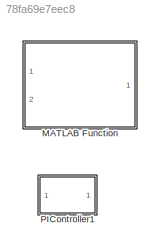
MODEL slx_78fa69e7eec8
KIND model
CONFIG AbsTol = auto
CONFIG EnableMultiTasking = off
CONFIG FixedStep = auto
CONFIG MaxStep = auto
CONFIG MinStep = auto
CONFIG RelTol = 1e-3
CONFIG SampleTimeConstraint = Unconstrained
CONFIG SolverName = VariableStepAuto
CONFIG StartTime = 0.0
CONFIG StopTime = 10.0
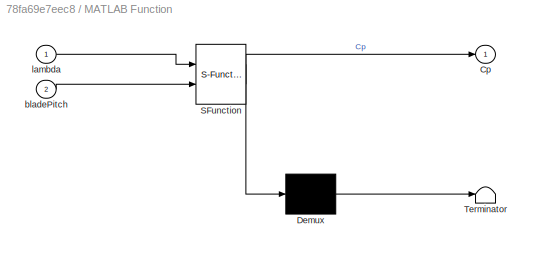
BLOCK [SubSystem] MATLAB Function
  ErrorFcn = Stateflow.Translate.translate
  PermitHierarchicalResolution = ExplicitOnly
  Ports = [2, 1]
  RequestExecContextInheritance = off
  SFBlockType = MATLAB Function
  TreatAsAtomicUnit = on
BLOCK [Demux] MATLAB Function/ Demux 
  Outputs = 1
  Ports = [1, 1]
BLOCK [S-Function] MATLAB Function/ SFunction 
  EnableBusSupport = off
  FunctionName = sf_sfun
  PortCounts = [2 2]
  Ports = [2, 2]
  SFcnIsStateOwnerBlock = off
  SFunctionDeploymentMode = off
  Tag = Stateflow S-Function 2
BLOCK [Terminator] MATLAB Function/ Terminator 
BLOCK [Outport] MATLAB Function/Cp
BLOCK [Inport] MATLAB Function/bladePitch
  Port = 2
BLOCK [Inport] MATLAB Function/lambda
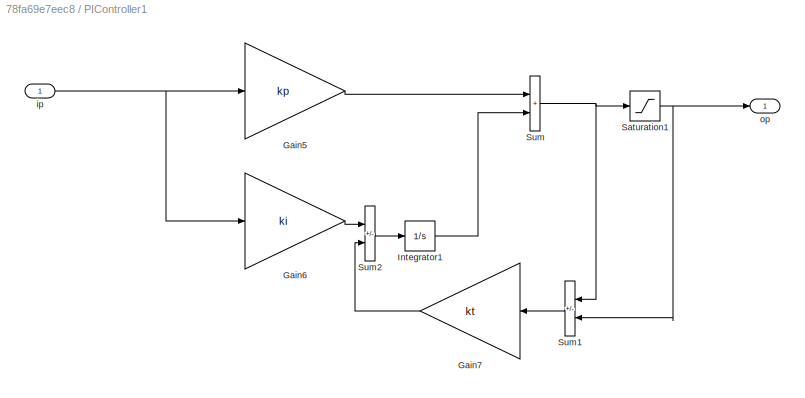
BLOCK [SubSystem] PIController1
  Ports = [1, 1]
  RequestExecContextInheritance = off
BLOCK [Gain] PIController1/Gain5
  Gain = kp
BLOCK [Gain] PIController1/Gain6
  Gain = ki
BLOCK [Gain] PIController1/Gain7
  Gain = kt
BLOCK [Integrator] PIController1/Integrator1
  InitialCondition = int_0
  Ports = [1, 1]
BLOCK [Saturate] PIController1/Saturation1
  LowerLimit = lowerLimit
  UpperLimit = upperLimit
BLOCK [Sum] PIController1/Sum
  IconShape = rectangular
  Ports = [2, 1]
BLOCK [Sum] PIController1/Sum1
  IconShape = rectangular
  Inputs = +-
  Ports = [2, 1]
BLOCK [Sum] PIController1/Sum2
  IconShape = rectangular
  Inputs = +-
  Ports = [2, 1]
BLOCK [Inport] PIController1/ip
BLOCK [Outport] PIController1/op
LINE PIController1/Gain5:1 -> PIController1/Sum:1
LINE PIController1/Gain6:1 -> PIController1/Sum2:1
LINE PIController1/Gain7:1 -> PIController1/Sum2:2
LINE PIController1/Integrator1:1 -> PIController1/Sum:2
NET PIController1/Saturation1:1 -> PIController1/Sum1:2, PIController1/op:1
LINE PIController1/Sum1:1 -> PIController1/Gain7:1
LINE PIController1/Sum2:1 -> PIController1/Integrator1:1
NET PIController1/Sum:1 -> PIController1/Saturation1:1, PIController1/Sum1:1
NET PIController1/ip:1 -> PIController1/Gain5:1, PIController1/Gain6:1
note: NET lines group one-source signal fan-out (src -> all destinations, sorted); 1:1 wires keep LINE
CHART MATLAB Function states=1 transitions=1
  STATE_LABEL 'eML_blk_kernel()'
  STATE_LABEL 'SCRIPT:\nfunction Cp = fcn(lambda,bladePitch)\n\n% https://www.mathworks.com/help/physmod/sps/powersys/ref/windturbine.html\n\nc = [...\n    0.5176 ...\n    116 ...\n    0.4 ...\n    5 ...\n    21 ...\n    0.0068];\n\nlambdaai = 1/( 1/(lambda+0.08*bladePitch) - 0.035/(bladePitch^3+1) );\n\nCp = c(1)*(c(2)/lambdaai-c(3)*bladePitch-c(4))*exp(-c(5)/lambdaai) + c(6)*lambda;'
CHART  states=0 transitions=0
